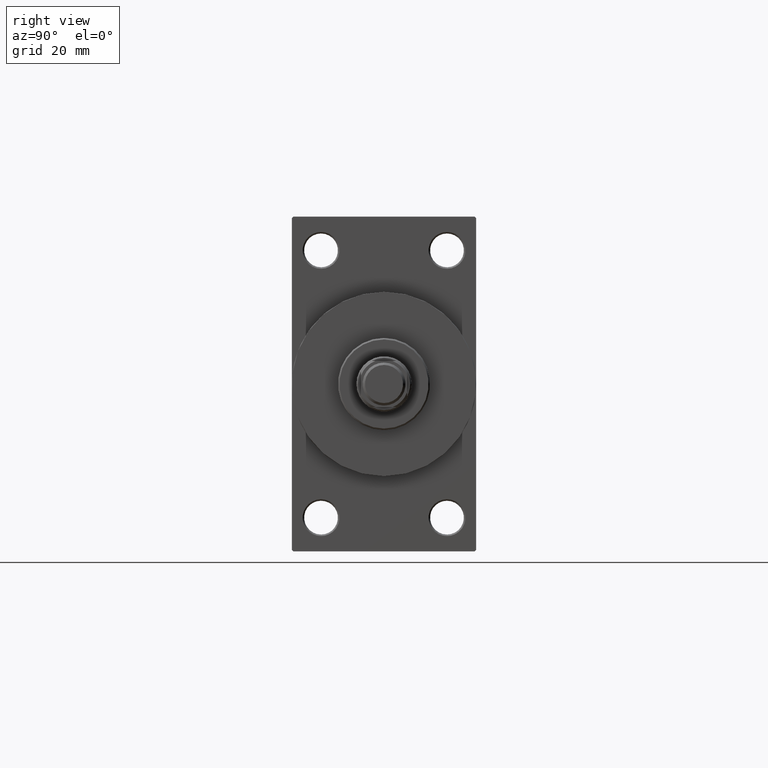
[diagram: clean part render]
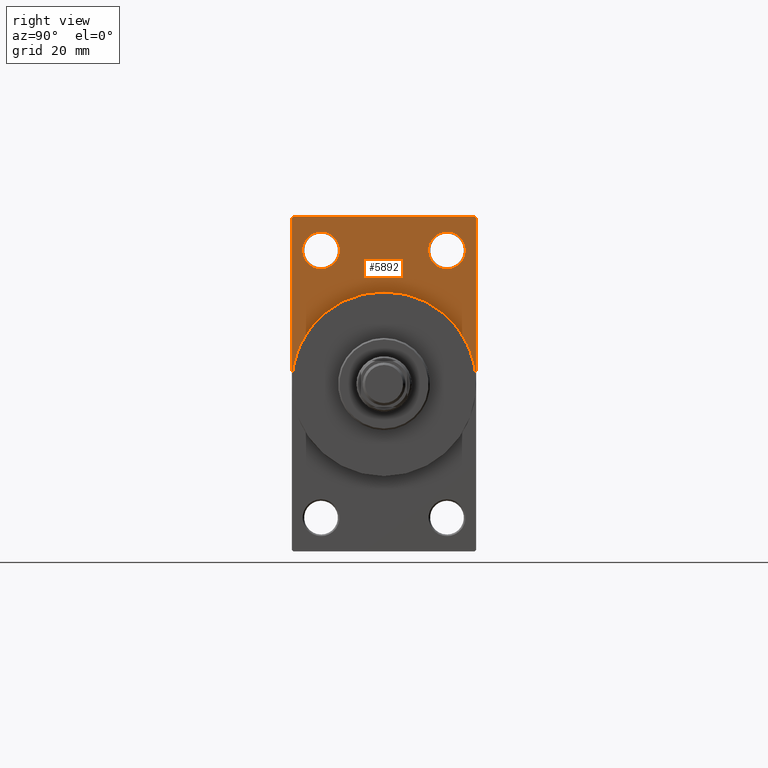
[diagram: same view with one face highlighted and labeled with its STEP entity id]
A machine part, right view. The second image highlights one B-rep face of the part: STEP entity #5892.
In plain terms, the highlighted planar face has unit normal (-1, 0, 0).
Its self-contained STEP definition (entity closure, byte-faithful):
#1007 = ORIENTED_EDGE ( 'NONE', *, *, #23791, .T. ) ;
#1075 = CIRCLE ( 'NONE', #28030, 6.000000000000088818 ) ;
#2754 = AXIS2_PLACEMENT_3D ( 'NONE', #18684, #3969, #29535 ) ;
#3269 = CARTESIAN_POINT ( 'NONE',  ( 138.0000000000000000, 0.000000000000000000, 0.000000000000000000 ) ) ;
#3624 = ORIENTED_EDGE ( 'NONE', *, *, #8786, .T. ) ;
#3969 = DIRECTION ( 'NONE',  ( 1.000000000000000000, 0.000000000000000000, 0.000000000000000000 ) ) ;
#4503 = EDGE_LOOP ( 'NONE', ( #27282, #4937 ) ) ;
#4937 = ORIENTED_EDGE ( 'NONE', *, *, #36036, .T. ) ;
#4982 = VERTEX_POINT ( 'NONE', #6751 ) ;
#5313 = EDGE_CURVE ( 'NONE', #18754, #23431, #8651, .T. ) ;
#5352 = ORIENTED_EDGE ( 'NONE', *, *, #44142, .F. ) ;
#5493 = DIRECTION ( 'NONE',  ( 1.000000000000000000, 0.000000000000000000, 0.000000000000000000 ) ) ;
#5673 = ORIENTED_EDGE ( 'NONE', *, *, #5313, .F. ) ;
#5779 = DIRECTION ( 'NONE',  ( -1.000000000000000000, 0.000000000000000000, -0.000000000000000000 ) ) ;
#5892 = ADVANCED_FACE ( 'NONE', ( #12114, #27059, #29070 ), #41770, .F. ) ;
#6020 = AXIS2_PLACEMENT_3D ( 'NONE', #3269, #17981, #41544 ) ;
#6751 = CARTESIAN_POINT ( 'NONE',  ( 138.0000000000000000, 0.000000000000000000, 30.00000000000000000 ) ) ;
#8105 = CARTESIAN_POINT ( 'NONE',  ( 138.0000000000000000, 20.50000000000000000, 43.50000000000000000 ) ) ;
#8650 = DIRECTION ( 'NONE',  ( 0.000000000000000000, -1.000000000000000000, 1.156482317317871478E-16 ) ) ;
#8651 = LINE ( 'NONE', #13003, #9847 ) ;
#8786 = EDGE_CURVE ( 'NONE', #25853, #18576, #23793, .T. ) ;
#9155 = DIRECTION ( 'NONE',  ( -1.000000000000000000, 0.000000000000000000, -0.000000000000000000 ) ) ;
#9169 = CARTESIAN_POINT ( 'NONE',  ( 138.0000000000000000, -20.50000000000000000, 43.50000000000000000 ) ) ;
#9205 = VERTEX_POINT ( 'NONE', #44457 ) ;
#9847 = VECTOR ( 'NONE', #12289, 1000.000000000000000 ) ;
#10984 = VECTOR ( 'NONE', #18012, 1000.000000000000000 ) ;
#11320 = DIRECTION ( 'NONE',  ( 0.000000000000000000, 0.000000000000000000, 1.000000000000000000 ) ) ;
#11942 = VECTOR ( 'NONE', #8650, 1000.000000000000000 ) ;
#12114 = FACE_BOUND ( 'NONE', #4503, .T. ) ;
#12289 = DIRECTION ( 'NONE',  ( 0.000000000000000000, 0.000000000000000000, -1.000000000000000000 ) ) ;
#12772 = CIRCLE ( 'NONE', #2754, 30.00000000000000000 ) ;
#12845 = EDGE_LOOP ( 'NONE', ( #13112, #26289, #1007, #5352, #32567, #5673, #37204 ) ) ;
#12937 = CARTESIAN_POINT ( 'NONE',  ( 138.0000000000000000, 20.50000000000000000, 49.50000000000008527 ) ) ;
#13003 = CARTESIAN_POINT ( 'NONE',  ( 138.0000000000000000, 29.99999999999999645, 54.49999999999999289 ) ) ;
#13112 = ORIENTED_EDGE ( 'NONE', *, *, #43871, .T. ) ;
#14125 = CIRCLE ( 'NONE', #24149, 30.00000000000000000 ) ;
#14288 = CARTESIAN_POINT ( 'NONE',  ( 138.0000000000000000, 29.50000000000002132, 54.49999999999999289 ) ) ;
#14374 = DIRECTION ( 'NONE',  ( 0.000000000000000000, -0.7071067811865279218, 0.7071067811865671127 ) ) ;
#14669 = VERTEX_POINT ( 'NONE', #47222 ) ;
#14711 = CARTESIAN_POINT ( 'NONE',  ( 138.0000000000000000, 20.50000000000000000, 37.49999999999990763 ) ) ;
#14881 = DIRECTION ( 'NONE',  ( 0.000000000000000000, 0.000000000000000000, 1.000000000000000000 ) ) ;
#17932 = AXIS2_PLACEMENT_3D ( 'NONE', #42915, #9155, #27721 ) ;
#17981 = DIRECTION ( 'NONE',  ( -1.000000000000000000, 0.000000000000000000, -0.000000000000000000 ) ) ;
#17988 = CARTESIAN_POINT ( 'NONE',  ( 138.0000000000000000, 29.50000000000002132, 54.49999999999999289 ) ) ;
#18012 = DIRECTION ( 'NONE',  ( 0.000000000000000000, 0.000000000000000000, -1.000000000000000000 ) ) ;
#18273 = VECTOR ( 'NONE', #14374, 1000.000000000000000 ) ;
#18576 = VERTEX_POINT ( 'NONE', #14711 ) ;
#18684 = CARTESIAN_POINT ( 'NONE',  ( 138.0000000000000000, 0.000000000000000000, 0.000000000000000000 ) ) ;
#18716 = DIRECTION ( 'NONE',  ( -0.000000000000000000, -0.7071067811865451302, -0.7071067811865500152 ) ) ;
#18754 = VERTEX_POINT ( 'NONE', #24575 ) ;
#18981 = DIRECTION ( 'NONE',  ( -1.000000000000000000, 0.000000000000000000, -0.000000000000000000 ) ) ;
#19709 = VERTEX_POINT ( 'NONE', #24283 ) ;
#20505 = DIRECTION ( 'NONE',  ( 0.000000000000000000, 0.000000000000000000, 1.000000000000000000 ) ) ;
#22370 = VERTEX_POINT ( 'NONE', #27342 ) ;
#23379 = LINE ( 'NONE', #30601, #11942 ) ;
#23431 = VERTEX_POINT ( 'NONE', #36405 ) ;
#23791 = EDGE_CURVE ( 'NONE', #19709, #14669, #39971, .T. ) ;
#23793 = CIRCLE ( 'NONE', #33838, 6.000000000000088818 ) ;
#24149 = AXIS2_PLACEMENT_3D ( 'NONE', #27447, #5493, #27925 ) ;
#24283 = CARTESIAN_POINT ( 'NONE',  ( 138.0000000000000000, -30.00000000000000000, 53.99999999999997158 ) ) ;
#24569 = EDGE_CURVE ( 'NONE', #23431, #4982, #14125, .T. ) ;
#24575 = CARTESIAN_POINT ( 'NONE',  ( 138.0000000000000000, 29.99999999999999645, 53.99999999999999289 ) ) ;
#25774 = EDGE_CURVE ( 'NONE', #18576, #25853, #1075, .T. ) ;
#25853 = VERTEX_POINT ( 'NONE', #12937 ) ;
#26289 = ORIENTED_EDGE ( 'NONE', *, *, #39293, .T. ) ;
#27059 = FACE_BOUND ( 'NONE', #47560, .T. ) ;
#27282 = ORIENTED_EDGE ( 'NONE', *, *, #27380, .T. ) ;
#27342 = CARTESIAN_POINT ( 'NONE',  ( 138.0000000000000000, -20.50000000000000000, 49.50000000000008527 ) ) ;
#27380 = EDGE_CURVE ( 'NONE', #9205, #22370, #37220, .T. ) ;
#27447 = CARTESIAN_POINT ( 'NONE',  ( 138.0000000000000000, 0.000000000000000000, 0.000000000000000000 ) ) ;
#27691 = VERTEX_POINT ( 'NONE', #32637 ) ;
#27721 = DIRECTION ( 'NONE',  ( 0.000000000000000000, 0.000000000000000000, 1.000000000000000000 ) ) ;
#27925 = DIRECTION ( 'NONE',  ( 0.000000000000000000, 0.000000000000000000, -1.000000000000000000 ) ) ;
#28030 = AXIS2_PLACEMENT_3D ( 'NONE', #8105, #18981, #14881 ) ;
#29070 = FACE_OUTER_BOUND ( 'NONE', #12845, .T. ) ;
#29535 = DIRECTION ( 'NONE',  ( 0.000000000000000000, 0.000000000000000000, -1.000000000000000000 ) ) ;
#30601 = CARTESIAN_POINT ( 'NONE',  ( 138.0000000000000000, 29.99999999999999645, 54.49999999999999289 ) ) ;
#31316 = CIRCLE ( 'NONE', #44408, 6.000000000000088818 ) ;
#32567 = ORIENTED_EDGE ( 'NONE', *, *, #24569, .F. ) ;
#32637 = CARTESIAN_POINT ( 'NONE',  ( 138.0000000000000000, -29.49999999999997513, 54.50000000000000000 ) ) ;
#33838 = AXIS2_PLACEMENT_3D ( 'NONE', #37620, #44365, #11320 ) ;
#36036 = EDGE_CURVE ( 'NONE', #22370, #9205, #31316, .T. ) ;
#36099 = LINE ( 'NONE', #17988, #18273 ) ;
#36355 = CARTESIAN_POINT ( 'NONE',  ( 138.0000000000000000, -30.00000000000000000, 54.50000000000000000 ) ) ;
#36405 = CARTESIAN_POINT ( 'NONE',  ( 138.0000000000000000, 30.00000000000000000, 0.000000000000000000 ) ) ;
#37204 = ORIENTED_EDGE ( 'NONE', *, *, #37405, .T. ) ;
#37220 = CIRCLE ( 'NONE', #17932, 6.000000000000088818 ) ;
#37405 = EDGE_CURVE ( 'NONE', #18754, #47721, #36099, .T. ) ;
#37620 = CARTESIAN_POINT ( 'NONE',  ( 138.0000000000000000, 20.50000000000000000, 43.50000000000000000 ) ) ;
#39293 = EDGE_CURVE ( 'NONE', #27691, #19709, #47445, .T. ) ;
#39971 = LINE ( 'NONE', #36355, #10984 ) ;
#40198 = CARTESIAN_POINT ( 'NONE',  ( 138.0000000000000000, -30.00000000000000000, 53.99999999999997158 ) ) ;
#41345 = VECTOR ( 'NONE', #18716, 1000.000000000000114 ) ;
#41544 = DIRECTION ( 'NONE',  ( -0.000000000000000000, 0.000000000000000000, 1.000000000000000000 ) ) ;
#41770 = PLANE ( 'NONE',  #6020 ) ;
#42915 = CARTESIAN_POINT ( 'NONE',  ( 138.0000000000000000, -20.50000000000000000, 43.50000000000000000 ) ) ;
#43256 = ORIENTED_EDGE ( 'NONE', *, *, #25774, .T. ) ;
#43871 = EDGE_CURVE ( 'NONE', #47721, #27691, #23379, .T. ) ;
#44142 = EDGE_CURVE ( 'NONE', #4982, #14669, #12772, .T. ) ;
#44365 = DIRECTION ( 'NONE',  ( -1.000000000000000000, 0.000000000000000000, -0.000000000000000000 ) ) ;
#44408 = AXIS2_PLACEMENT_3D ( 'NONE', #9169, #5779, #20505 ) ;
#44457 = CARTESIAN_POINT ( 'NONE',  ( 138.0000000000000000, -20.50000000000000000, 37.49999999999990763 ) ) ;
#47222 = CARTESIAN_POINT ( 'NONE',  ( 138.0000000000000000, -30.00000000000000000, 0.000000000000000000 ) ) ;
#47445 = LINE ( 'NONE', #40198, #41345 ) ;
#47560 = EDGE_LOOP ( 'NONE', ( #43256, #3624 ) ) ;
#47721 = VERTEX_POINT ( 'NONE', #14288 ) ;